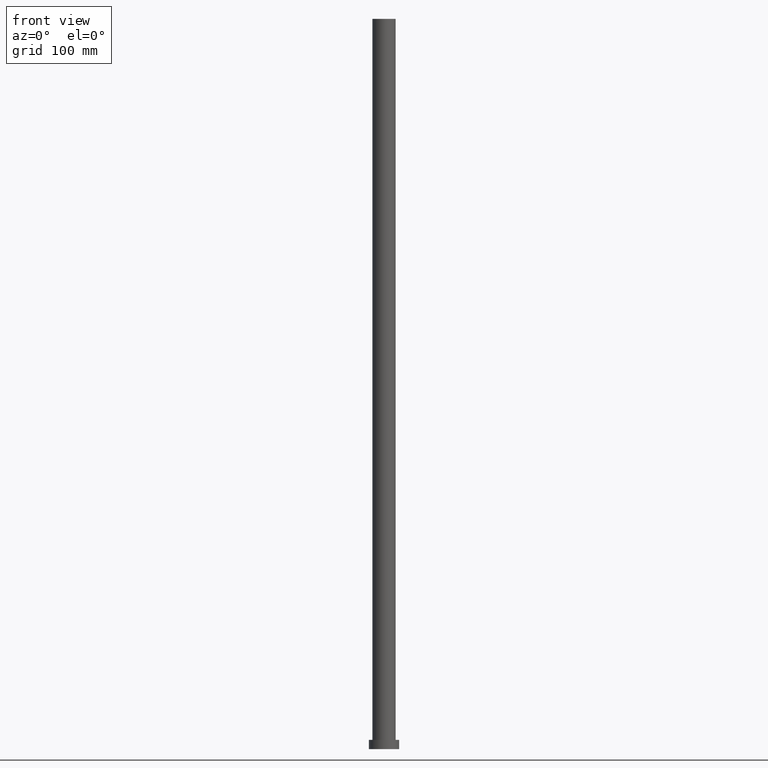
[diagram: clean part render]
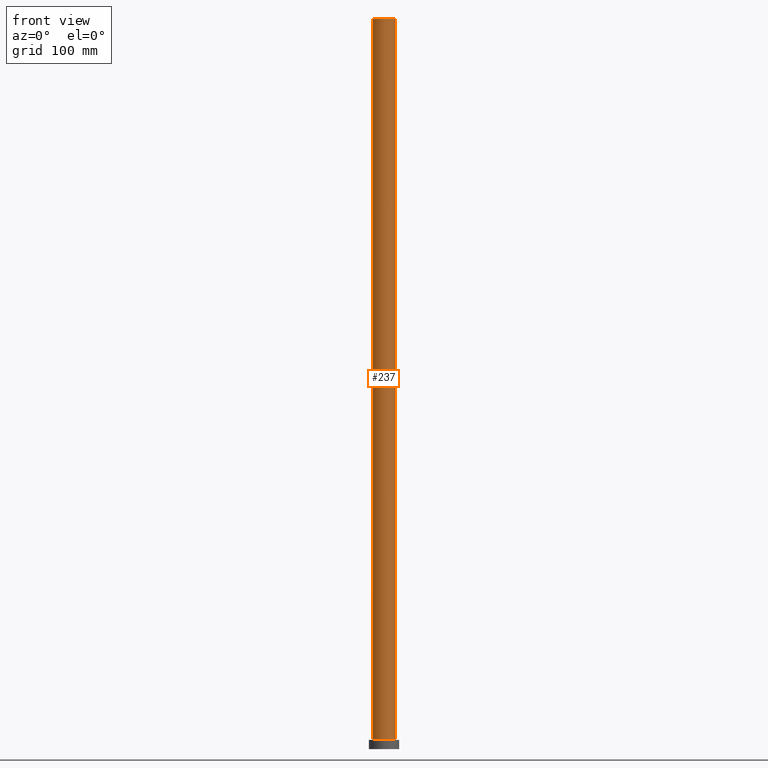
[diagram: same view with one face highlighted and labeled with its STEP entity id]
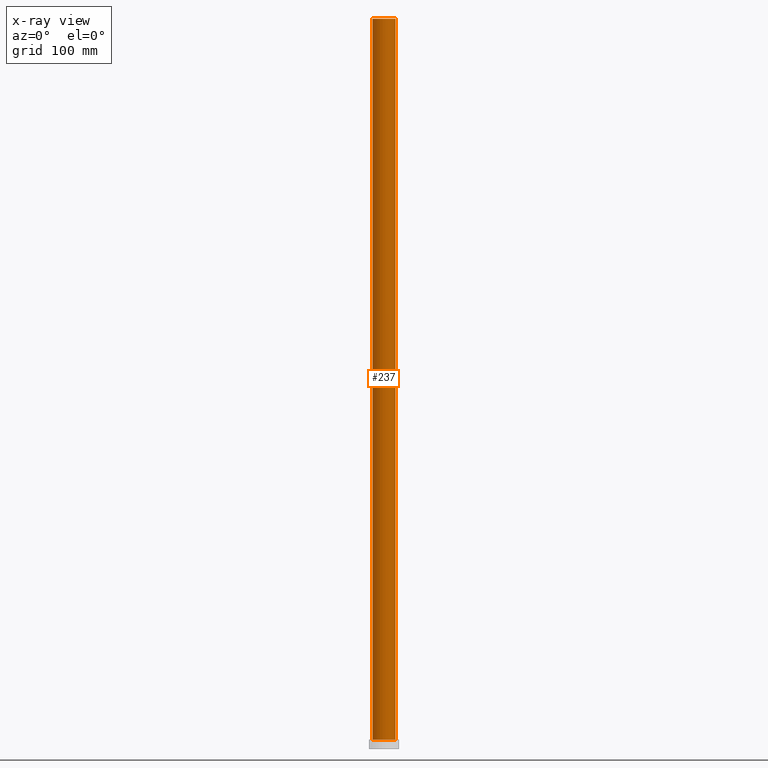
[diagram: x-ray of the same camera — body ghosted, the highlighted face saturated]
A machine part, front view. The second image highlights one B-rep face of the part: STEP entity #237.
The next image is the same camera in x-ray: the body ghosted, the highlighted face saturated — about 0% of this face is hidden behind the body in this view.
In plain terms, the highlighted cylindrical surface (edge-blend (fillet) strip) has radius 10 mm, axis along (-0, -0, -1).
Its self-contained STEP definition (entity closure, byte-faithful):
#13 = CARTESIAN_POINT ( 'NONE',  ( 0.000000000000000000, 0.000000000000000000, 630.0000000000000000 ) ) ;
#31 = CARTESIAN_POINT ( 'NONE',  ( -10.00000000000000000, 0.000000000000000000, 8.000000000000000000 ) ) ;
#35 = DIRECTION ( 'NONE',  ( -0.000000000000000000, -0.000000000000000000, -1.000000000000000000 ) ) ;
#36 = DIRECTION ( 'NONE',  ( 0.000000000000000000, 0.000000000000000000, 1.000000000000000000 ) ) ;
#40 = AXIS2_PLACEMENT_3D ( 'NONE', #128, #36, #220 ) ;
#45 = CARTESIAN_POINT ( 'NONE',  ( -10.00000000000000000, 0.000000000000000000, 630.0000000000000000 ) ) ;
#52 = DIRECTION ( 'NONE',  ( -0.000000000000000000, -0.000000000000000000, -1.000000000000000000 ) ) ;
#63 = EDGE_CURVE ( 'NONE', #189, #156, #228, .T. ) ;
#76 = ORIENTED_EDGE ( 'NONE', *, *, #90, .F. ) ;
#90 = EDGE_CURVE ( 'NONE', #136, #254, #109, .T. ) ;
#92 = ORIENTED_EDGE ( 'NONE', *, *, #172, .T. ) ;
#106 = CYLINDRICAL_SURFACE ( 'NONE', #112, 10.00000000000000000 ) ;
#109 = CIRCLE ( 'NONE', #247, 10.00000000000000000 ) ;
#112 = AXIS2_PLACEMENT_3D ( 'NONE', #245, #182, #219 ) ;
#113 = ORIENTED_EDGE ( 'NONE', *, *, #166, .F. ) ;
#114 = EDGE_LOOP ( 'NONE', ( #113, #76, #92, #115 ) ) ;
#115 = ORIENTED_EDGE ( 'NONE', *, *, #63, .T. ) ;
#128 = CARTESIAN_POINT ( 'NONE',  ( 0.000000000000000000, 0.000000000000000000, 8.000000000000000000 ) ) ;
#131 = DIRECTION ( 'NONE',  ( 1.000000000000000000, 0.000000000000000000, 0.000000000000000000 ) ) ;
#132 = VECTOR ( 'NONE', #52, 1000.000000000000000 ) ;
#136 = VERTEX_POINT ( 'NONE', #145 ) ;
#144 = CARTESIAN_POINT ( 'NONE',  ( 10.00000000000000000, 1.224646799147353256E-15, 630.0000000000000000 ) ) ;
#145 = CARTESIAN_POINT ( 'NONE',  ( -10.00000000000000000, 0.000000000000000000, 630.0000000000000000 ) ) ;
#147 = LINE ( 'NONE', #144, #243 ) ;
#156 = VERTEX_POINT ( 'NONE', #164 ) ;
#164 = CARTESIAN_POINT ( 'NONE',  ( 10.00000000000000000, 1.224646799147353256E-15, 8.000000000000000000 ) ) ;
#166 = EDGE_CURVE ( 'NONE', #254, #156, #147, .T. ) ;
#172 = EDGE_CURVE ( 'NONE', #136, #189, #217, .T. ) ;
#182 = DIRECTION ( 'NONE',  ( -0.000000000000000000, -0.000000000000000000, -1.000000000000000000 ) ) ;
#189 = VERTEX_POINT ( 'NONE', #31 ) ;
#201 = CARTESIAN_POINT ( 'NONE',  ( 10.00000000000000000, 1.224646799147353256E-15, 630.0000000000000000 ) ) ;
#205 = FACE_OUTER_BOUND ( 'NONE', #114, .T. ) ;
#217 = LINE ( 'NONE', #45, #132 ) ;
#219 = DIRECTION ( 'NONE',  ( -1.000000000000000000, 0.000000000000000000, 0.000000000000000000 ) ) ;
#220 = DIRECTION ( 'NONE',  ( 1.000000000000000000, 0.000000000000000000, 0.000000000000000000 ) ) ;
#228 = CIRCLE ( 'NONE', #40, 10.00000000000000000 ) ;
#231 = DIRECTION ( 'NONE',  ( 0.000000000000000000, 0.000000000000000000, 1.000000000000000000 ) ) ;
#237 = ADVANCED_FACE ( 'NONE', ( #205 ), #106, .T. ) ;
#243 = VECTOR ( 'NONE', #35, 1000.000000000000000 ) ;
#245 = CARTESIAN_POINT ( 'NONE',  ( 0.000000000000000000, 0.000000000000000000, 630.0000000000000000 ) ) ;
#247 = AXIS2_PLACEMENT_3D ( 'NONE', #13, #231, #131 ) ;
#254 = VERTEX_POINT ( 'NONE', #201 ) ;